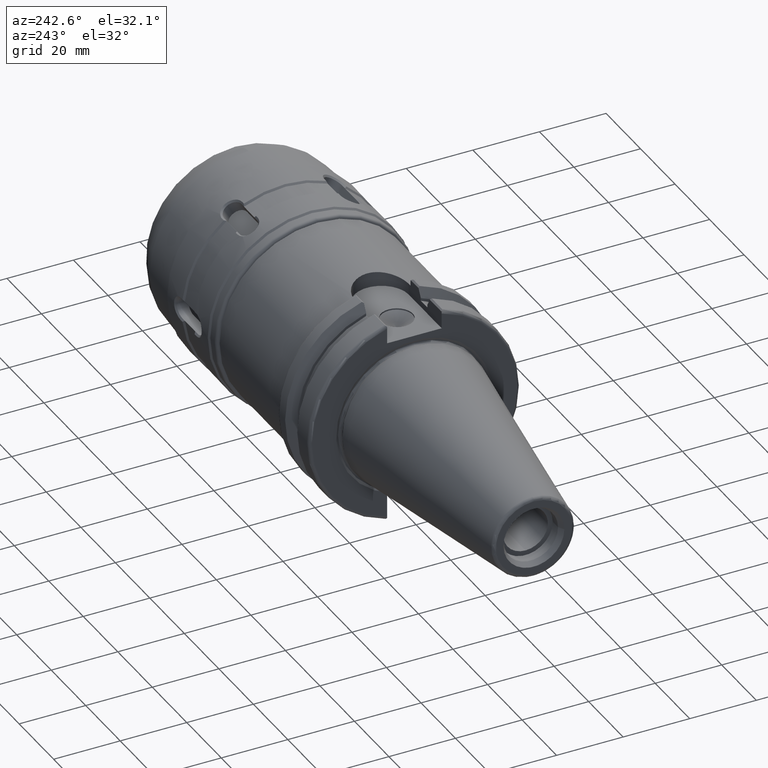
[diagram: clean part render]
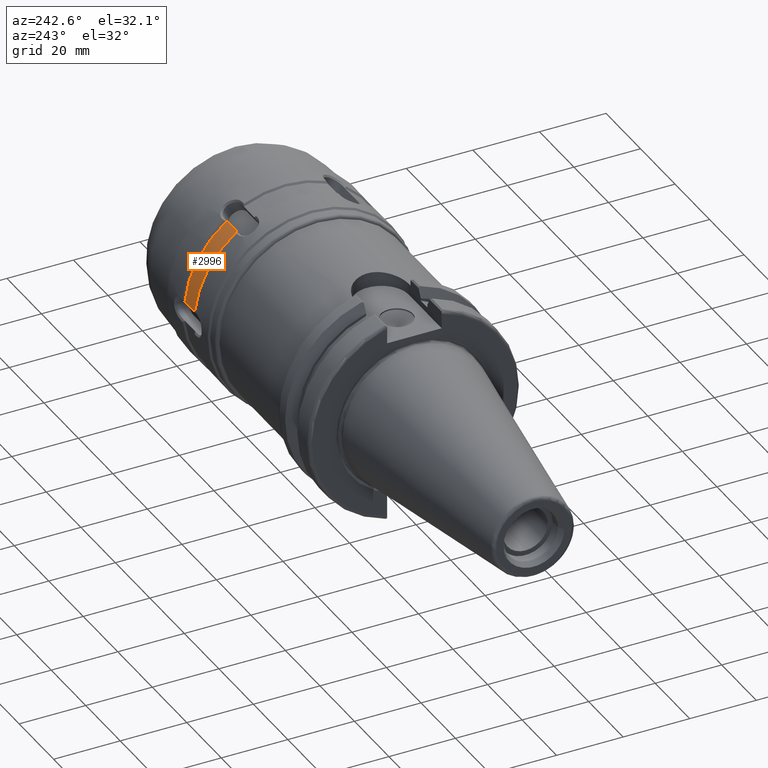
[diagram: same view with one face highlighted and labeled with its STEP entity id]
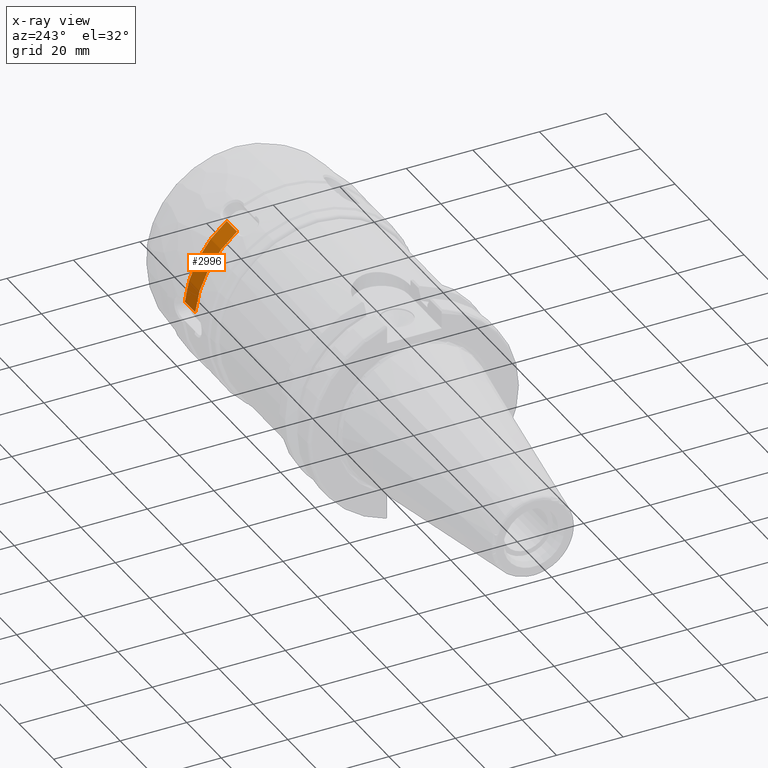
[diagram: x-ray of the same camera — body ghosted, the highlighted face saturated]
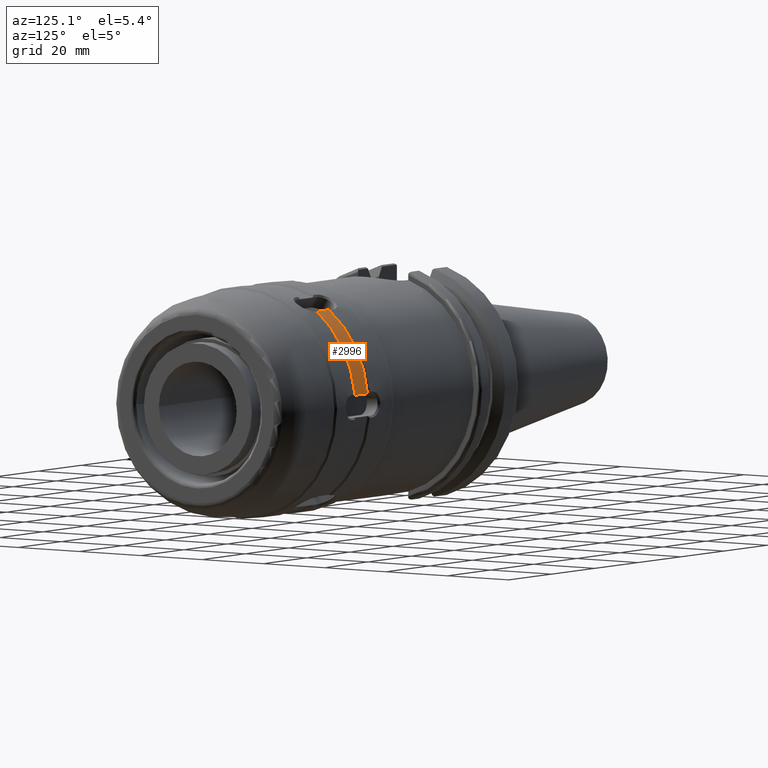
[diagram: same view with one face highlighted and labeled with its STEP entity id]
A machine part, auxiliary view. The second image highlights one B-rep face of the part: STEP entity #2996.
The next image is the same camera in x-ray: the body ghosted, the highlighted face saturated — about 0% of this face is hidden behind the body in this view.
A second angle (auxiliary view) of the same face is appended — the face is thin or edge-on in the first view.
In plain terms, the highlighted cylindrical surface (partial cylindrical patch) has radius 30.5 mm, axis along (1, 0, 0).
Its self-contained STEP definition (entity closure, byte-faithful):
#375=FACE_OUTER_BOUND('',#561,.T.);
#561=EDGE_LOOP('',(#2581,#2582,#2583,#2584));
#698=CIRCLE('',#3316,30.5);
#702=CIRCLE('',#3327,30.5);
#906=LINE('',#5858,#1109);
#914=LINE('',#5990,#1117);
#1109=VECTOR('',#3974,10.);
#1117=VECTOR('',#4014,10.);
#1420=VERTEX_POINT('',#5853);
#1421=VERTEX_POINT('',#5857);
#1428=VERTEX_POINT('',#5959);
#1433=VERTEX_POINT('',#5984);
#1824=EDGE_CURVE('',#1421,#1420,#906,.T.);
#1836=EDGE_CURVE('',#1428,#1421,#698,.T.);
#1844=EDGE_CURVE('',#1433,#1420,#702,.T.);
#1845=EDGE_CURVE('',#1433,#1428,#914,.T.);
#2581=ORIENTED_EDGE('',*,*,#1824,.T.);
#2582=ORIENTED_EDGE('',*,*,#1844,.F.);
#2583=ORIENTED_EDGE('',*,*,#1845,.T.);
#2584=ORIENTED_EDGE('',*,*,#1836,.T.);
#2849=CYLINDRICAL_SURFACE('',#3328,30.5);
#2996=ADVANCED_FACE('',(#375),#2849,.T.);
#3316=AXIS2_PLACEMENT_3D('',#5960,#3988,#3989);
#3327=AXIS2_PLACEMENT_3D('',#5988,#4010,#4011);
#3328=AXIS2_PLACEMENT_3D('',#5989,#4012,#4013);
#3974=DIRECTION('',(1.,0.,0.));
#3988=DIRECTION('center_axis',(1.,0.,0.));
#3989=DIRECTION('ref_axis',(0.,0.,-1.));
#4010=DIRECTION('center_axis',(1.,0.,0.));
#4011=DIRECTION('ref_axis',(0.,0.,-1.));
#4012=DIRECTION('center_axis',(1.,0.,0.));
#4013=DIRECTION('ref_axis',(0.,1.,0.));
#4014=DIRECTION('',(-1.,0.,0.));
#5853=CARTESIAN_POINT('',(18.5,17.7741264221295,24.7856900232807));
#5857=CARTESIAN_POINT('',(12.5,17.7741264221295,24.7856900232807));
#5858=CARTESIAN_POINT('',(15.5,17.7741264221295,24.7856900232807));
#5959=CARTESIAN_POINT('',(12.5,30.3521004215524,3.));
#5960=CARTESIAN_POINT('Origin',(12.5,0.,0.));
#5984=CARTESIAN_POINT('',(18.5,30.3521004215524,3.));
#5988=CARTESIAN_POINT('Origin',(18.5,0.,0.));
#5989=CARTESIAN_POINT('Origin',(15.5,0.,0.));
#5990=CARTESIAN_POINT('',(15.5,30.3521004215524,3.));